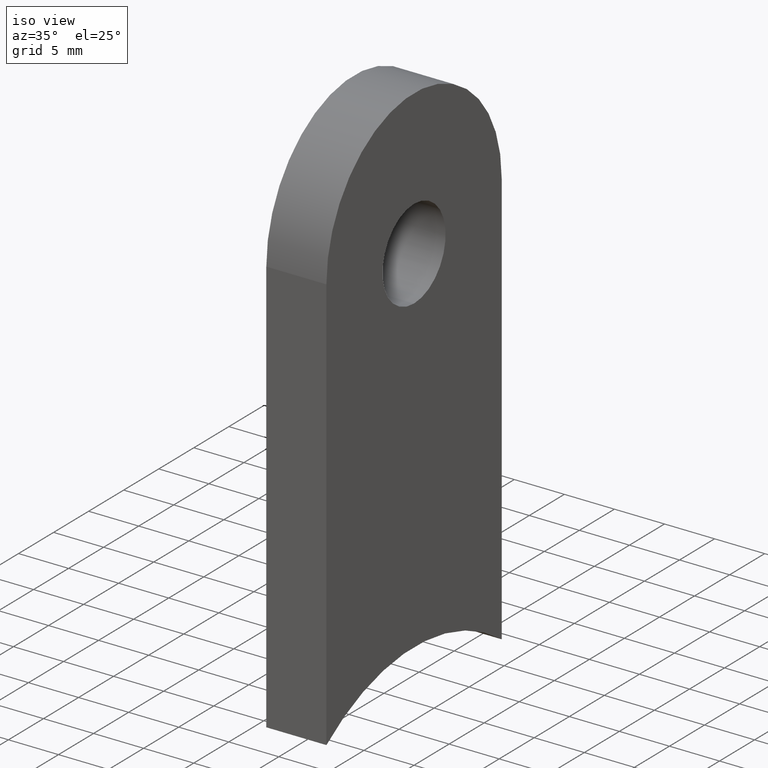
[diagram: clean part render]
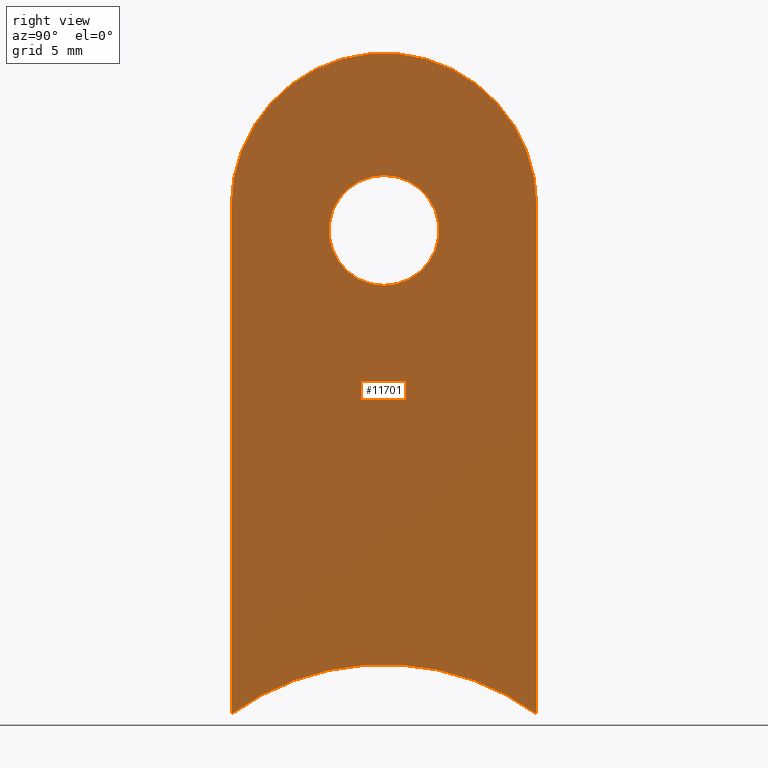
[diagram: tour spotlight — one face highlighted and labeled with its STEP entity id]
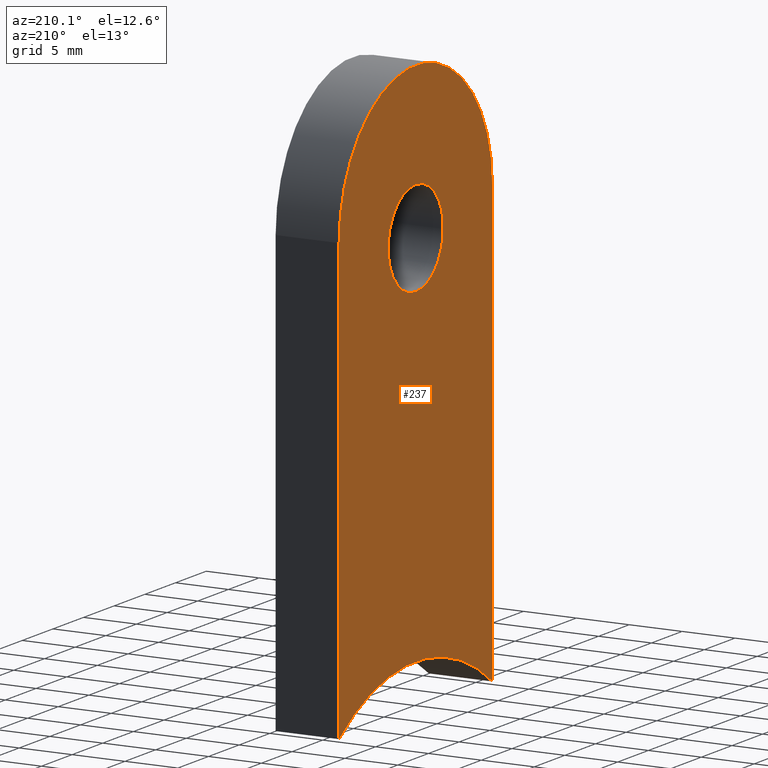
[diagram: tour spotlight — one face highlighted and labeled with its STEP entity id]
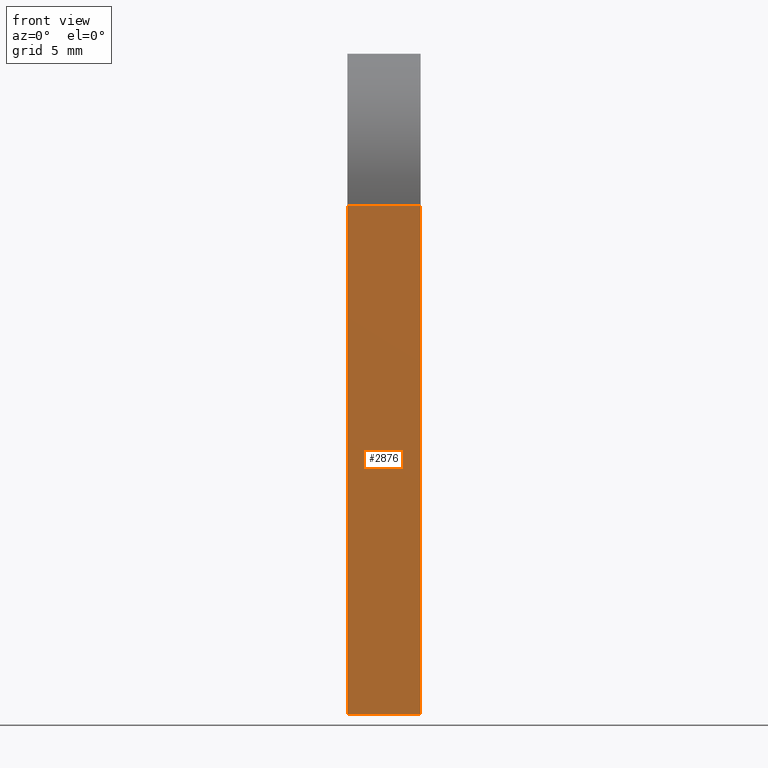
[diagram: tour spotlight — one face highlighted and labeled with its STEP entity id]
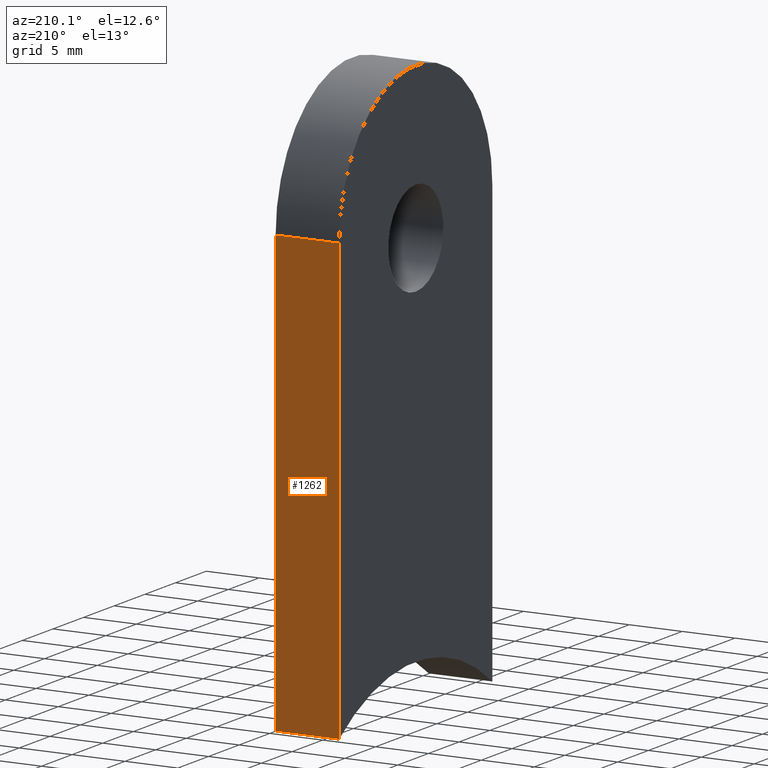
[diagram: tour spotlight — one face highlighted and labeled with its STEP entity id]
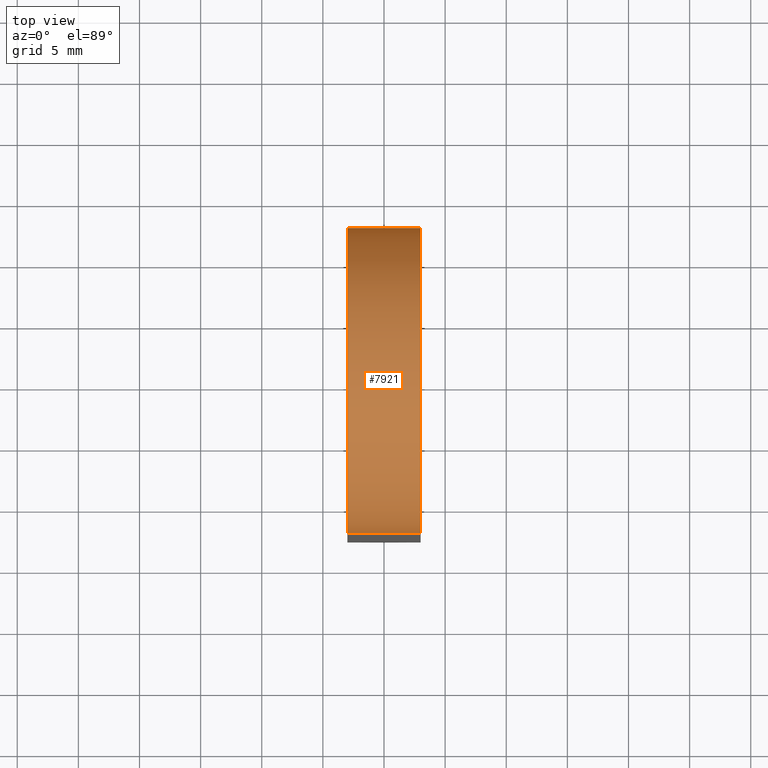
[diagram: tour spotlight — one face highlighted and labeled with its STEP entity id]
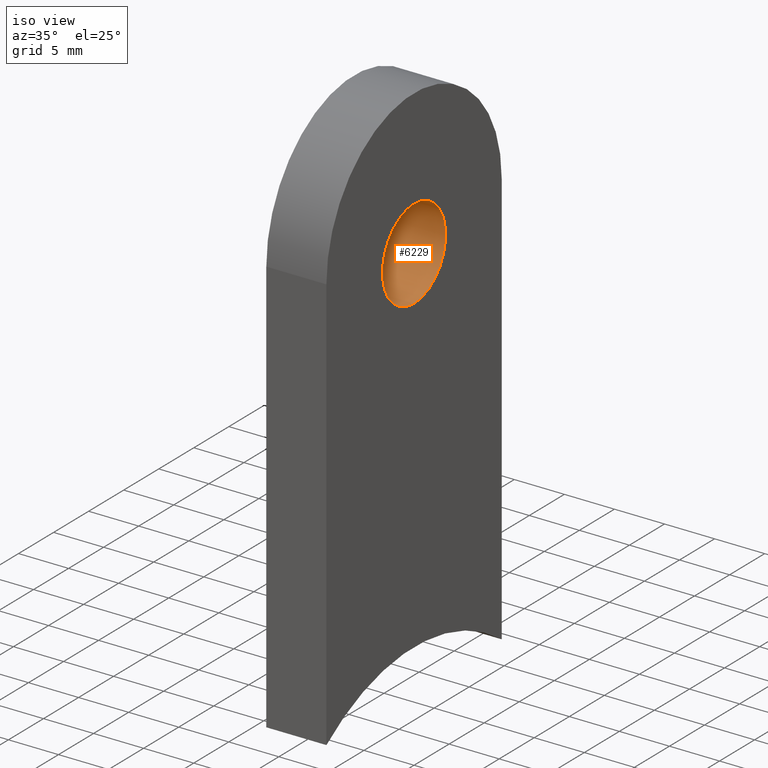
[diagram: tour spotlight — one face highlighted and labeled with its STEP entity id]
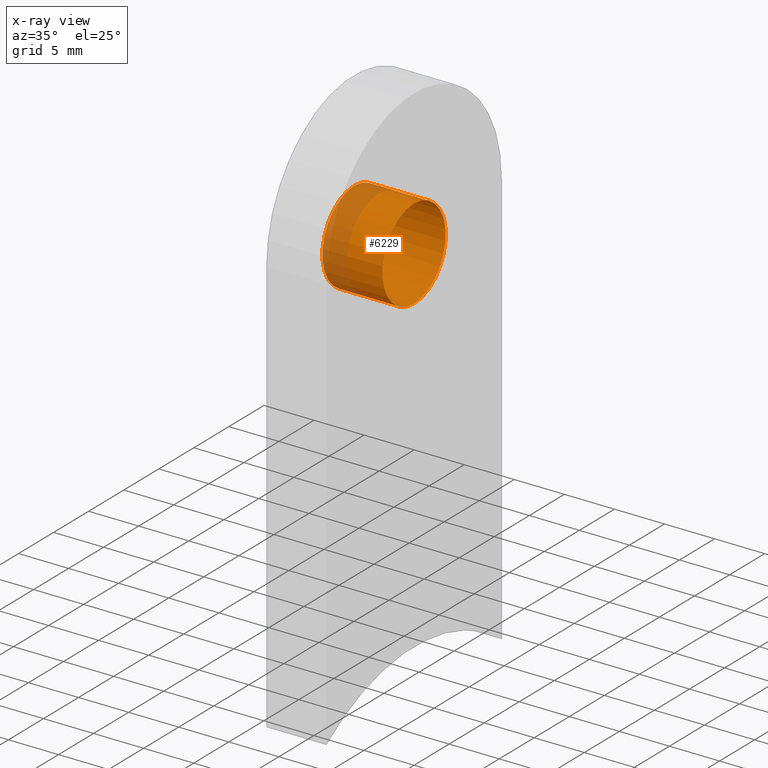
[diagram: x-ray of the same camera — body ghosted, this tour face saturated]
A machine part: a face-by-face anatomy tour. The part has 273 B-rep faces; the first image is the clean iso view, then the 6 largest visible faces are spotlighted one at a time (largest first), each with its STEP entity span.

Face 1 — right view, entity #11701. In plain terms, the highlighted planar face has unit normal (-1, -0, 0).
Definition (entity closure, byte-faithful):
#5 = CARTESIAN_POINT ( 'NONE',  ( 3.000000000000000000, 0.000000000000000000, 37.50000000000000000 ) ) ;
#57 = CARTESIAN_POINT ( 'NONE',  ( 3.000000000000000000, -12.50000000000000000, -3.367778697655221307E-15 ) ) ;
#103 = DIRECTION ( 'NONE',  ( 0.000000000000000000, -4.625929269271485791E-17, 1.000000000000000000 ) ) ;
#977 = DIRECTION ( 'NONE',  ( -1.000000000000000000, -0.000000000000000000, 0.000000000000000000 ) ) ;
#1334 = DIRECTION ( 'NONE',  ( 1.000000000000000000, 0.000000000000000000, 0.000000000000000000 ) ) ;
#1729 = CARTESIAN_POINT ( 'NONE',  ( 3.000000000000000000, 12.50000000000000000, -4.077208171562675787 ) ) ;
#1758 = FACE_BOUND ( 'NONE', #3873, .T. ) ;
#1777 = AXIS2_PLACEMENT_3D ( 'NONE', #6590, #4742, #9462 ) ;
#2141 = EDGE_CURVE ( 'NONE', #6619, #2399, #7634, .T. ) ;
#2277 = ORIENTED_EDGE ( 'NONE', *, *, #10745, .F. ) ;
#2399 = VERTEX_POINT ( 'NONE', #9158 ) ;
#2654 = DIRECTION ( 'NONE',  ( 0.000000000000000000, 0.000000000000000000, 1.000000000000000000 ) ) ;
#3204 = LINE ( 'NONE', #57, #9012 ) ;
#3592 = ORIENTED_EDGE ( 'NONE', *, *, #5020, .F. ) ;
#3873 = EDGE_LOOP ( 'NONE', ( #3592 ) ) ;
#4147 = LINE ( 'NONE', #7860, #8013 ) ;
#4245 = DIRECTION ( 'NONE',  ( 0.000000000000000000, 0.000000000000000000, -1.000000000000000000 ) ) ;
#4457 = AXIS2_PLACEMENT_3D ( 'NONE', #4744, #8696, #4872 ) ;
#4742 = DIRECTION ( 'NONE',  ( 1.000000000000000000, 0.000000000000000000, 0.000000000000000000 ) ) ;
#4744 = CARTESIAN_POINT ( 'NONE',  ( 3.000000000000000000, 0.000000000000000000, 37.50000000000000000 ) ) ;
#4872 = DIRECTION ( 'NONE',  ( 0.000000000000000000, 0.000000000000000000, 1.000000000000000000 ) ) ;
#4978 = EDGE_LOOP ( 'NONE', ( #10936, #8825, #2277, #8277 ) ) ;
#5020 = EDGE_CURVE ( 'NONE', #9820, #9820, #10891, .T. ) ;
#5433 = CIRCLE ( 'NONE', #1777, 21.19999999999999929 ) ;
#5874 = AXIS2_PLACEMENT_3D ( 'NONE', #5, #977, #2654 ) ;
#6590 = CARTESIAN_POINT ( 'NONE',  ( 3.000000000000000000, 0.000000000000000000, -21.19999999999999929 ) ) ;
#6619 = VERTEX_POINT ( 'NONE', #9373 ) ;
#6657 = FACE_OUTER_BOUND ( 'NONE', #4978, .T. ) ;
#7031 = CARTESIAN_POINT ( 'NONE',  ( 3.000000000000000000, 0.000000000000000000, 35.49999999999999289 ) ) ;
#7562 = EDGE_CURVE ( 'NONE', #10066, #10918, #5433, .T. ) ;
#7634 = CIRCLE ( 'NONE', #4457, 12.50000000000000355 ) ;
#7860 = CARTESIAN_POINT ( 'NONE',  ( 3.000000000000000000, 12.50000000000000178, 37.50000000000000000 ) ) ;
#8013 = VECTOR ( 'NONE', #11688, 1000.000000000000000 ) ;
#8277 = ORIENTED_EDGE ( 'NONE', *, *, #2141, .F. ) ;
#8562 = PLANE ( 'NONE',  #5874 ) ;
#8696 = DIRECTION ( 'NONE',  ( -1.000000000000000000, -0.000000000000000000, 0.000000000000000000 ) ) ;
#8825 = ORIENTED_EDGE ( 'NONE', *, *, #7562, .F. ) ;
#8961 = EDGE_CURVE ( 'NONE', #10918, #6619, #3204, .T. ) ;
#9012 = VECTOR ( 'NONE', #103, 1000.000000000000000 ) ;
#9158 = CARTESIAN_POINT ( 'NONE',  ( 3.000000000000000000, 12.50000000000000178, 37.50000000000000000 ) ) ;
#9209 = AXIS2_PLACEMENT_3D ( 'NONE', #7031, #1334, #4245 ) ;
#9373 = CARTESIAN_POINT ( 'NONE',  ( 3.000000000000000000, -12.50000000000000178, 37.50000000000000000 ) ) ;
#9462 = DIRECTION ( 'NONE',  ( 0.000000000000000000, 0.000000000000000000, -1.000000000000000000 ) ) ;
#9820 = VERTEX_POINT ( 'NONE', #11194 ) ;
#10066 = VERTEX_POINT ( 'NONE', #1729 ) ;
#10745 = EDGE_CURVE ( 'NONE', #2399, #10066, #4147, .T. ) ;
#10891 = CIRCLE ( 'NONE', #9209, 4.499999999999997335 ) ;
#10918 = VERTEX_POINT ( 'NONE', #12301 ) ;
#10936 = ORIENTED_EDGE ( 'NONE', *, *, #8961, .F. ) ;
#11194 = CARTESIAN_POINT ( 'NONE',  ( 3.000000000000000000, 0.000000000000000000, 30.99999999999999289 ) ) ;
#11688 = DIRECTION ( 'NONE',  ( 0.000000000000000000, -4.625929269271485791E-17, -1.000000000000000000 ) ) ;
#11701 = ADVANCED_FACE ( 'NONE', ( #1758, #6657 ), #8562, .F. ) ;
#12301 = CARTESIAN_POINT ( 'NONE',  ( 3.000000000000000000, -12.50000000000000000, -4.077208171562675787 ) ) ;

Face 2 — auxiliary view, entity #237. In plain terms, the highlighted planar face has unit normal (-1, -0, 0).
Definition (entity closure, byte-faithful):
#237 = ADVANCED_FACE ( 'NONE', ( #8894, #519 ), #5852, .T. ) ;
#472 = DIRECTION ( 'NONE',  ( -1.000000000000000000, -0.000000000000000000, 0.000000000000000000 ) ) ;
#488 = AXIS2_PLACEMENT_3D ( 'NONE', #8915, #4314, #8991 ) ;
#519 = FACE_BOUND ( 'NONE', #8341, .T. ) ;
#535 = ORIENTED_EDGE ( 'NONE', *, *, #8299, .T. ) ;
#660 = VECTOR ( 'NONE', #2447, 1000.000000000000000 ) ;
#2109 = AXIS2_PLACEMENT_3D ( 'NONE', #7412, #2689, #6495 ) ;
#2255 = CARTESIAN_POINT ( 'NONE',  ( -3.000000000000000000, -12.50000000000000178, 37.50000000000000000 ) ) ;
#2447 = DIRECTION ( 'NONE',  ( 0.000000000000000000, -4.625929269271485791E-17, 1.000000000000000000 ) ) ;
#2689 = DIRECTION ( 'NONE',  ( 1.000000000000000000, 0.000000000000000000, 0.000000000000000000 ) ) ;
#2713 = EDGE_LOOP ( 'NONE', ( #9619, #7572, #12391, #11745 ) ) ;
#3293 = AXIS2_PLACEMENT_3D ( 'NONE', #11977, #472, #8095 ) ;
#3654 = CARTESIAN_POINT ( 'NONE',  ( -3.000000000000000000, -12.50000000000000000, -3.367778697655221307E-15 ) ) ;
#3925 = CARTESIAN_POINT ( 'NONE',  ( -3.000000000000000000, -12.50000000000000000, -4.077208171562679340 ) ) ;
#4314 = DIRECTION ( 'NONE',  ( 1.000000000000000000, 0.000000000000000000, 0.000000000000000000 ) ) ;
#4591 = LINE ( 'NONE', #9867, #7559 ) ;
#5562 = CIRCLE ( 'NONE', #3293, 12.50000000000000355 ) ;
#5686 = DIRECTION ( 'NONE',  ( 0.000000000000000000, 0.000000000000000000, 1.000000000000000000 ) ) ;
#5852 = PLANE ( 'NONE',  #6419 ) ;
#5940 = VERTEX_POINT ( 'NONE', #8490 ) ;
#6284 = CARTESIAN_POINT ( 'NONE',  ( -3.000000000000000000, 0.000000000000000000, 30.99999999999999289 ) ) ;
#6419 = AXIS2_PLACEMENT_3D ( 'NONE', #10486, #9558, #5686 ) ;
#6495 = DIRECTION ( 'NONE',  ( 0.000000000000000000, 0.000000000000000000, -1.000000000000000000 ) ) ;
#7412 = CARTESIAN_POINT ( 'NONE',  ( -3.000000000000000000, 0.000000000000000000, -21.19999999999999929 ) ) ;
#7502 = CIRCLE ( 'NONE', #488, 4.499999999999997335 ) ;
#7559 = VECTOR ( 'NONE', #10752, 1000.000000000000000 ) ;
#7572 = ORIENTED_EDGE ( 'NONE', *, *, #8852, .T. ) ;
#8095 = DIRECTION ( 'NONE',  ( 0.000000000000000000, 0.000000000000000000, 1.000000000000000000 ) ) ;
#8116 = VERTEX_POINT ( 'NONE', #10272 ) ;
#8299 = EDGE_CURVE ( 'NONE', #10727, #10727, #7502, .T. ) ;
#8314 = EDGE_CURVE ( 'NONE', #11857, #5940, #5562, .T. ) ;
#8341 = EDGE_LOOP ( 'NONE', ( #535 ) ) ;
#8490 = CARTESIAN_POINT ( 'NONE',  ( -3.000000000000000000, 12.50000000000000178, 37.50000000000000000 ) ) ;
#8852 = EDGE_CURVE ( 'NONE', #9482, #11857, #11612, .T. ) ;
#8894 = FACE_OUTER_BOUND ( 'NONE', #2713, .T. ) ;
#8915 = CARTESIAN_POINT ( 'NONE',  ( -3.000000000000000000, 0.000000000000000000, 35.49999999999999289 ) ) ;
#8991 = DIRECTION ( 'NONE',  ( 0.000000000000000000, 0.000000000000000000, -1.000000000000000000 ) ) ;
#9352 = EDGE_CURVE ( 'NONE', #8116, #9482, #11603, .T. ) ;
#9482 = VERTEX_POINT ( 'NONE', #3925 ) ;
#9558 = DIRECTION ( 'NONE',  ( -1.000000000000000000, -0.000000000000000000, 0.000000000000000000 ) ) ;
#9619 = ORIENTED_EDGE ( 'NONE', *, *, #9352, .T. ) ;
#9867 = CARTESIAN_POINT ( 'NONE',  ( -3.000000000000000000, 12.50000000000000178, 37.50000000000000000 ) ) ;
#10272 = CARTESIAN_POINT ( 'NONE',  ( -3.000000000000000000, 12.50000000000000000, -4.077208171562675787 ) ) ;
#10331 = EDGE_CURVE ( 'NONE', #5940, #8116, #4591, .T. ) ;
#10486 = CARTESIAN_POINT ( 'NONE',  ( -3.000000000000000000, 0.000000000000000000, 37.50000000000000000 ) ) ;
#10727 = VERTEX_POINT ( 'NONE', #6284 ) ;
#10752 = DIRECTION ( 'NONE',  ( 0.000000000000000000, -4.625929269271485791E-17, -1.000000000000000000 ) ) ;
#11603 = CIRCLE ( 'NONE', #2109, 21.19999999999999929 ) ;
#11612 = LINE ( 'NONE', #3654, #660 ) ;
#11745 = ORIENTED_EDGE ( 'NONE', *, *, #10331, .T. ) ;
#11857 = VERTEX_POINT ( 'NONE', #2255 ) ;
#11977 = CARTESIAN_POINT ( 'NONE',  ( -3.000000000000000000, 0.000000000000000000, 37.50000000000000000 ) ) ;
#12391 = ORIENTED_EDGE ( 'NONE', *, *, #8314, .T. ) ;

Face 3 — front view, entity #2876. In plain terms, the highlighted planar face has unit normal (0, -1, -0).
Definition (entity closure, byte-faithful):
#21 = DIRECTION ( 'NONE',  ( 0.000000000000000000, 4.625929269271485174E-17, -1.000000000000000000 ) ) ;
#57 = CARTESIAN_POINT ( 'NONE',  ( 3.000000000000000000, -12.50000000000000000, -3.367778697655221307E-15 ) ) ;
#103 = DIRECTION ( 'NONE',  ( 0.000000000000000000, -4.625929269271485791E-17, 1.000000000000000000 ) ) ;
#152 = CARTESIAN_POINT ( 'NONE',  ( 3.000000000000000000, -12.50000000000000000, -3.367778697655221307E-15 ) ) ;
#660 = VECTOR ( 'NONE', #2447, 1000.000000000000000 ) ;
#775 = CARTESIAN_POINT ( 'NONE',  ( 3.000000000000000000, -12.50000000000000178, 37.50000000000000000 ) ) ;
#1068 = LINE ( 'NONE', #8500, #1365 ) ;
#1365 = VECTOR ( 'NONE', #3713, 1000.000000000000000 ) ;
#1380 = FACE_OUTER_BOUND ( 'NONE', #2750, .T. ) ;
#2255 = CARTESIAN_POINT ( 'NONE',  ( -3.000000000000000000, -12.50000000000000178, 37.50000000000000000 ) ) ;
#2447 = DIRECTION ( 'NONE',  ( 0.000000000000000000, -4.625929269271485791E-17, 1.000000000000000000 ) ) ;
#2750 = EDGE_LOOP ( 'NONE', ( #4399, #10454, #7774, #11302 ) ) ;
#2873 = VECTOR ( 'NONE', #9253, 1000.000000000000000 ) ;
#2876 = ADVANCED_FACE ( 'NONE', ( #1380 ), #4879, .T. ) ;
#3112 = EDGE_CURVE ( 'NONE', #6619, #11857, #8228, .T. ) ;
#3204 = LINE ( 'NONE', #57, #9012 ) ;
#3654 = CARTESIAN_POINT ( 'NONE',  ( -3.000000000000000000, -12.50000000000000000, -3.367778697655221307E-15 ) ) ;
#3713 = DIRECTION ( 'NONE',  ( 1.000000000000000000, -0.000000000000000000, -0.000000000000000000 ) ) ;
#3821 = AXIS2_PLACEMENT_3D ( 'NONE', #152, #6789, #21 ) ;
#3925 = CARTESIAN_POINT ( 'NONE',  ( -3.000000000000000000, -12.50000000000000000, -4.077208171562679340 ) ) ;
#4399 = ORIENTED_EDGE ( 'NONE', *, *, #4540, .T. ) ;
#4540 = EDGE_CURVE ( 'NONE', #9482, #10918, #1068, .T. ) ;
#4879 = PLANE ( 'NONE',  #3821 ) ;
#6619 = VERTEX_POINT ( 'NONE', #9373 ) ;
#6789 = DIRECTION ( 'NONE',  ( 0.000000000000000000, -1.000000000000000000, -4.625929269271485174E-17 ) ) ;
#7774 = ORIENTED_EDGE ( 'NONE', *, *, #3112, .T. ) ;
#8228 = LINE ( 'NONE', #775, #2873 ) ;
#8500 = CARTESIAN_POINT ( 'NONE',  ( -3.000000000000000000, -12.50000000000000000, -4.077208171562675787 ) ) ;
#8852 = EDGE_CURVE ( 'NONE', #9482, #11857, #11612, .T. ) ;
#8961 = EDGE_CURVE ( 'NONE', #10918, #6619, #3204, .T. ) ;
#9012 = VECTOR ( 'NONE', #103, 1000.000000000000000 ) ;
#9253 = DIRECTION ( 'NONE',  ( -1.000000000000000000, -0.000000000000000000, -0.000000000000000000 ) ) ;
#9373 = CARTESIAN_POINT ( 'NONE',  ( 3.000000000000000000, -12.50000000000000178, 37.50000000000000000 ) ) ;
#9482 = VERTEX_POINT ( 'NONE', #3925 ) ;
#10454 = ORIENTED_EDGE ( 'NONE', *, *, #8961, .T. ) ;
#10918 = VERTEX_POINT ( 'NONE', #12301 ) ;
#11302 = ORIENTED_EDGE ( 'NONE', *, *, #8852, .F. ) ;
#11612 = LINE ( 'NONE', #3654, #660 ) ;
#11857 = VERTEX_POINT ( 'NONE', #2255 ) ;
#12301 = CARTESIAN_POINT ( 'NONE',  ( 3.000000000000000000, -12.50000000000000000, -4.077208171562675787 ) ) ;

Face 4 — auxiliary view, entity #1262. In plain terms, the highlighted planar face has unit normal (0, 1, -0).
Definition (entity closure, byte-faithful):
#69 = LINE ( 'NONE', #5242, #5578 ) ;
#392 = PLANE ( 'NONE',  #11637 ) ;
#842 = EDGE_LOOP ( 'NONE', ( #11895, #7641, #5132, #11622 ) ) ;
#1262 = ADVANCED_FACE ( 'NONE', ( #11140 ), #392, .T. ) ;
#1286 = EDGE_CURVE ( 'NONE', #8116, #10066, #8711, .T. ) ;
#1729 = CARTESIAN_POINT ( 'NONE',  ( 3.000000000000000000, 12.50000000000000000, -4.077208171562675787 ) ) ;
#2320 = CARTESIAN_POINT ( 'NONE',  ( 3.000000000000000000, 12.50000000000000178, 37.50000000000000000 ) ) ;
#2399 = VERTEX_POINT ( 'NONE', #9158 ) ;
#4147 = LINE ( 'NONE', #7860, #8013 ) ;
#4305 = DIRECTION ( 'NONE',  ( 1.000000000000000000, -0.000000000000000000, -0.000000000000000000 ) ) ;
#4591 = LINE ( 'NONE', #9867, #7559 ) ;
#5132 = ORIENTED_EDGE ( 'NONE', *, *, #7403, .F. ) ;
#5242 = CARTESIAN_POINT ( 'NONE',  ( 3.000000000000000000, 12.50000000000000178, 37.50000000000000000 ) ) ;
#5272 = VECTOR ( 'NONE', #4305, 1000.000000000000000 ) ;
#5287 = DIRECTION ( 'NONE',  ( -1.000000000000000000, -0.000000000000000000, -0.000000000000000000 ) ) ;
#5578 = VECTOR ( 'NONE', #5287, 1000.000000000000000 ) ;
#5940 = VERTEX_POINT ( 'NONE', #8490 ) ;
#7090 = CARTESIAN_POINT ( 'NONE',  ( -3.000000000000000000, 12.50000000000000000, -4.077208171562675787 ) ) ;
#7403 = EDGE_CURVE ( 'NONE', #2399, #5940, #69, .T. ) ;
#7559 = VECTOR ( 'NONE', #10752, 1000.000000000000000 ) ;
#7641 = ORIENTED_EDGE ( 'NONE', *, *, #10331, .F. ) ;
#7860 = CARTESIAN_POINT ( 'NONE',  ( 3.000000000000000000, 12.50000000000000178, 37.50000000000000000 ) ) ;
#8013 = VECTOR ( 'NONE', #11688, 1000.000000000000000 ) ;
#8116 = VERTEX_POINT ( 'NONE', #10272 ) ;
#8490 = CARTESIAN_POINT ( 'NONE',  ( -3.000000000000000000, 12.50000000000000178, 37.50000000000000000 ) ) ;
#8711 = LINE ( 'NONE', #7090, #5272 ) ;
#8979 = DIRECTION ( 'NONE',  ( 0.000000000000000000, 4.625929269271485174E-17, 1.000000000000000000 ) ) ;
#9158 = CARTESIAN_POINT ( 'NONE',  ( 3.000000000000000000, 12.50000000000000178, 37.50000000000000000 ) ) ;
#9867 = CARTESIAN_POINT ( 'NONE',  ( -3.000000000000000000, 12.50000000000000178, 37.50000000000000000 ) ) ;
#10031 = DIRECTION ( 'NONE',  ( 0.000000000000000000, 1.000000000000000000, -4.625929269271485174E-17 ) ) ;
#10066 = VERTEX_POINT ( 'NONE', #1729 ) ;
#10272 = CARTESIAN_POINT ( 'NONE',  ( -3.000000000000000000, 12.50000000000000000, -4.077208171562675787 ) ) ;
#10331 = EDGE_CURVE ( 'NONE', #5940, #8116, #4591, .T. ) ;
#10745 = EDGE_CURVE ( 'NONE', #2399, #10066, #4147, .T. ) ;
#10752 = DIRECTION ( 'NONE',  ( 0.000000000000000000, -4.625929269271485791E-17, -1.000000000000000000 ) ) ;
#11140 = FACE_OUTER_BOUND ( 'NONE', #842, .T. ) ;
#11622 = ORIENTED_EDGE ( 'NONE', *, *, #10745, .T. ) ;
#11637 = AXIS2_PLACEMENT_3D ( 'NONE', #2320, #10031, #8979 ) ;
#11688 = DIRECTION ( 'NONE',  ( 0.000000000000000000, -4.625929269271485791E-17, -1.000000000000000000 ) ) ;
#11895 = ORIENTED_EDGE ( 'NONE', *, *, #1286, .F. ) ;

Face 5 — top view, entity #7921. In plain terms, the highlighted cylindrical surface (partial cylindrical patch) has radius 12.5 mm, axis along (-1, -0, -0).
Definition (entity closure, byte-faithful):
#69 = LINE ( 'NONE', #5242, #5578 ) ;
#472 = DIRECTION ( 'NONE',  ( -1.000000000000000000, -0.000000000000000000, 0.000000000000000000 ) ) ;
#775 = CARTESIAN_POINT ( 'NONE',  ( 3.000000000000000000, -12.50000000000000178, 37.50000000000000000 ) ) ;
#1415 = ORIENTED_EDGE ( 'NONE', *, *, #7403, .T. ) ;
#2141 = EDGE_CURVE ( 'NONE', #6619, #2399, #7634, .T. ) ;
#2255 = CARTESIAN_POINT ( 'NONE',  ( -3.000000000000000000, -12.50000000000000178, 37.50000000000000000 ) ) ;
#2399 = VERTEX_POINT ( 'NONE', #9158 ) ;
#2762 = FACE_OUTER_BOUND ( 'NONE', #10520, .T. ) ;
#2873 = VECTOR ( 'NONE', #9253, 1000.000000000000000 ) ;
#3062 = AXIS2_PLACEMENT_3D ( 'NONE', #9132, #6190, #12073 ) ;
#3112 = EDGE_CURVE ( 'NONE', #6619, #11857, #8228, .T. ) ;
#3293 = AXIS2_PLACEMENT_3D ( 'NONE', #11977, #472, #8095 ) ;
#4165 = ORIENTED_EDGE ( 'NONE', *, *, #2141, .T. ) ;
#4457 = AXIS2_PLACEMENT_3D ( 'NONE', #4744, #8696, #4872 ) ;
#4508 = ORIENTED_EDGE ( 'NONE', *, *, #8314, .F. ) ;
#4535 = ORIENTED_EDGE ( 'NONE', *, *, #3112, .F. ) ;
#4744 = CARTESIAN_POINT ( 'NONE',  ( 3.000000000000000000, 0.000000000000000000, 37.50000000000000000 ) ) ;
#4872 = DIRECTION ( 'NONE',  ( 0.000000000000000000, 0.000000000000000000, 1.000000000000000000 ) ) ;
#5242 = CARTESIAN_POINT ( 'NONE',  ( 3.000000000000000000, 12.50000000000000178, 37.50000000000000000 ) ) ;
#5282 = CYLINDRICAL_SURFACE ( 'NONE', #3062, 12.50000000000000355 ) ;
#5287 = DIRECTION ( 'NONE',  ( -1.000000000000000000, -0.000000000000000000, -0.000000000000000000 ) ) ;
#5562 = CIRCLE ( 'NONE', #3293, 12.50000000000000355 ) ;
#5578 = VECTOR ( 'NONE', #5287, 1000.000000000000000 ) ;
#5940 = VERTEX_POINT ( 'NONE', #8490 ) ;
#6190 = DIRECTION ( 'NONE',  ( -1.000000000000000000, -0.000000000000000000, -0.000000000000000000 ) ) ;
#6619 = VERTEX_POINT ( 'NONE', #9373 ) ;
#7403 = EDGE_CURVE ( 'NONE', #2399, #5940, #69, .T. ) ;
#7634 = CIRCLE ( 'NONE', #4457, 12.50000000000000355 ) ;
#7921 = ADVANCED_FACE ( 'NONE', ( #2762 ), #5282, .T. ) ;
#8095 = DIRECTION ( 'NONE',  ( 0.000000000000000000, 0.000000000000000000, 1.000000000000000000 ) ) ;
#8228 = LINE ( 'NONE', #775, #2873 ) ;
#8314 = EDGE_CURVE ( 'NONE', #11857, #5940, #5562, .T. ) ;
#8490 = CARTESIAN_POINT ( 'NONE',  ( -3.000000000000000000, 12.50000000000000178, 37.50000000000000000 ) ) ;
#8696 = DIRECTION ( 'NONE',  ( -1.000000000000000000, -0.000000000000000000, 0.000000000000000000 ) ) ;
#9132 = CARTESIAN_POINT ( 'NONE',  ( 3.000000000000000000, 0.000000000000000000, 37.50000000000000000 ) ) ;
#9158 = CARTESIAN_POINT ( 'NONE',  ( 3.000000000000000000, 12.50000000000000178, 37.50000000000000000 ) ) ;
#9253 = DIRECTION ( 'NONE',  ( -1.000000000000000000, -0.000000000000000000, -0.000000000000000000 ) ) ;
#9373 = CARTESIAN_POINT ( 'NONE',  ( 3.000000000000000000, -12.50000000000000178, 37.50000000000000000 ) ) ;
#10520 = EDGE_LOOP ( 'NONE', ( #4508, #4535, #4165, #1415 ) ) ;
#11857 = VERTEX_POINT ( 'NONE', #2255 ) ;
#11977 = CARTESIAN_POINT ( 'NONE',  ( -3.000000000000000000, 0.000000000000000000, 37.50000000000000000 ) ) ;
#12073 = DIRECTION ( 'NONE',  ( 0.000000000000000000, 0.000000000000000000, 1.000000000000000000 ) ) ;

Face 6 — iso view, entity #6229. An x-ray twin of the same camera follows (body ghosted, this face saturated) — the face is partly hidden behind the body. In plain terms, the highlighted cylindrical surface (bore or boss wall) has radius 4.5 mm, axis along (1, -0, -0).
Definition (entity closure, byte-faithful):
#488 = AXIS2_PLACEMENT_3D ( 'NONE', #8915, #4314, #8991 ) ;
#1143 = CYLINDRICAL_SURFACE ( 'NONE', #1381, 4.499999999999997335 ) ;
#1334 = DIRECTION ( 'NONE',  ( 1.000000000000000000, 0.000000000000000000, 0.000000000000000000 ) ) ;
#1381 = AXIS2_PLACEMENT_3D ( 'NONE', #3454, #1659, #9125 ) ;
#1659 = DIRECTION ( 'NONE',  ( 1.000000000000000000, -0.000000000000000000, -0.000000000000000000 ) ) ;
#2305 = EDGE_LOOP ( 'NONE', ( #3652 ) ) ;
#3454 = CARTESIAN_POINT ( 'NONE',  ( -3.000000000000000000, 0.000000000000000000, 35.49999999999999289 ) ) ;
#3652 = ORIENTED_EDGE ( 'NONE', *, *, #5020, .T. ) ;
#4245 = DIRECTION ( 'NONE',  ( 0.000000000000000000, 0.000000000000000000, -1.000000000000000000 ) ) ;
#4314 = DIRECTION ( 'NONE',  ( 1.000000000000000000, 0.000000000000000000, 0.000000000000000000 ) ) ;
#5020 = EDGE_CURVE ( 'NONE', #9820, #9820, #10891, .T. ) ;
#6229 = ADVANCED_FACE ( 'NONE', ( #9967, #8750 ), #1143, .F. ) ;
#6284 = CARTESIAN_POINT ( 'NONE',  ( -3.000000000000000000, 0.000000000000000000, 30.99999999999999289 ) ) ;
#7031 = CARTESIAN_POINT ( 'NONE',  ( 3.000000000000000000, 0.000000000000000000, 35.49999999999999289 ) ) ;
#7502 = CIRCLE ( 'NONE', #488, 4.499999999999997335 ) ;
#7725 = ORIENTED_EDGE ( 'NONE', *, *, #8299, .F. ) ;
#8299 = EDGE_CURVE ( 'NONE', #10727, #10727, #7502, .T. ) ;
#8750 = FACE_OUTER_BOUND ( 'NONE', #2305, .T. ) ;
#8915 = CARTESIAN_POINT ( 'NONE',  ( -3.000000000000000000, 0.000000000000000000, 35.49999999999999289 ) ) ;
#8991 = DIRECTION ( 'NONE',  ( 0.000000000000000000, 0.000000000000000000, -1.000000000000000000 ) ) ;
#9125 = DIRECTION ( 'NONE',  ( 0.000000000000000000, 0.000000000000000000, -1.000000000000000000 ) ) ;
#9209 = AXIS2_PLACEMENT_3D ( 'NONE', #7031, #1334, #4245 ) ;
#9340 = EDGE_LOOP ( 'NONE', ( #7725 ) ) ;
#9820 = VERTEX_POINT ( 'NONE', #11194 ) ;
#9967 = FACE_OUTER_BOUND ( 'NONE', #9340, .T. ) ;
#10727 = VERTEX_POINT ( 'NONE', #6284 ) ;
#10891 = CIRCLE ( 'NONE', #9209, 4.499999999999997335 ) ;
#11194 = CARTESIAN_POINT ( 'NONE',  ( 3.000000000000000000, 0.000000000000000000, 30.99999999999999289 ) ) ;